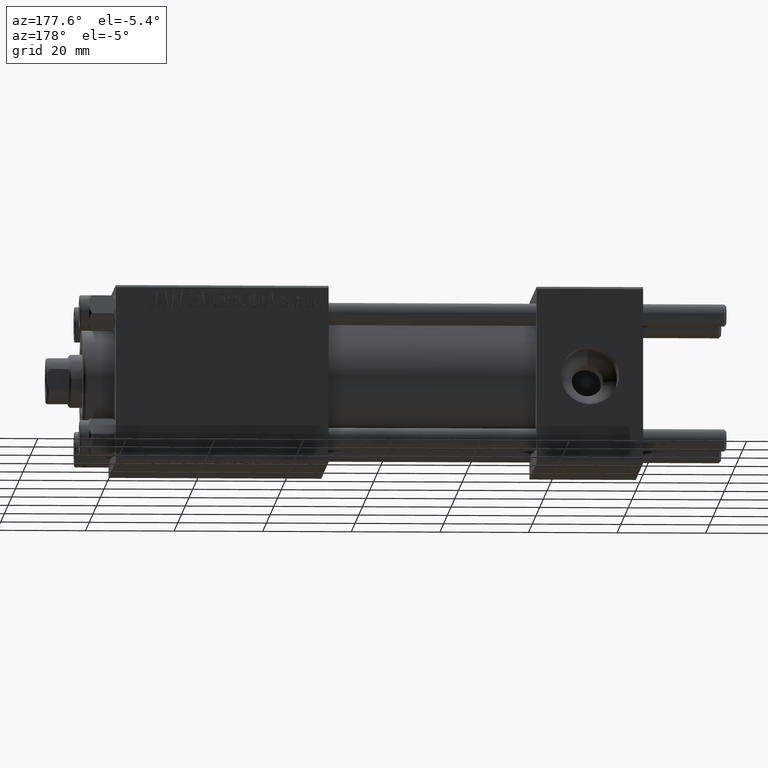
[diagram: clean part render]
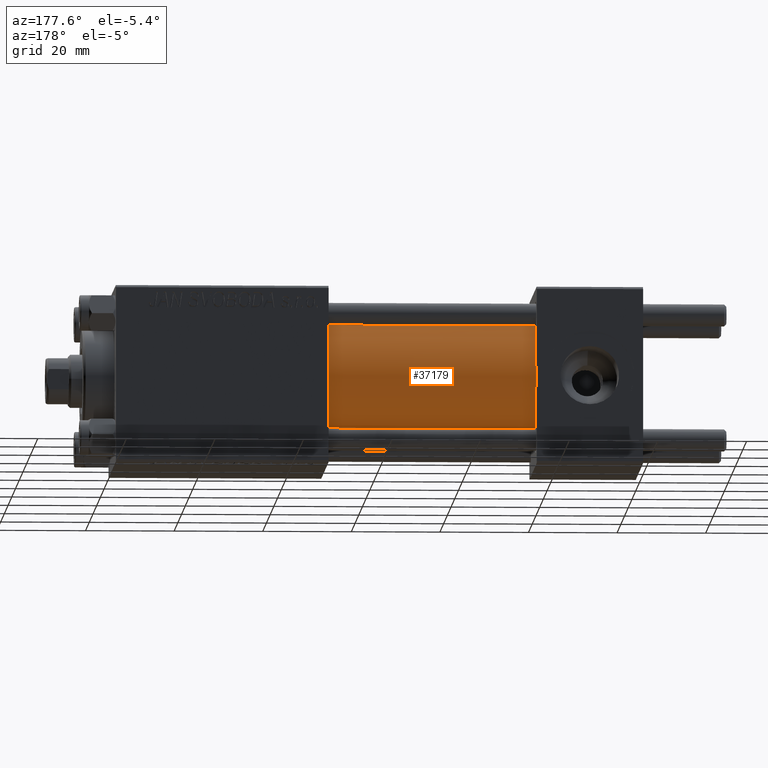
[diagram: same view with one face highlighted and labeled with its STEP entity id]
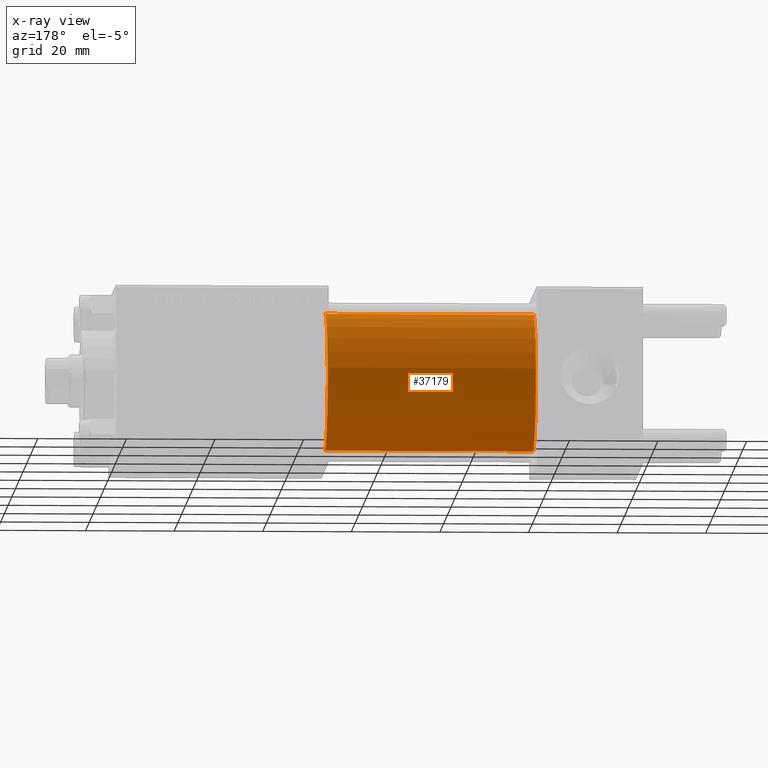
[diagram: x-ray of the same camera — body ghosted, the highlighted face saturated]
A machine part, auxiliary view. The second image highlights one B-rep face of the part: STEP entity #37179.
The next image is the same camera in x-ray: the body ghosted, the highlighted face saturated — about 0% of this face is hidden behind the body in this view.
In plain terms, the highlighted cylindrical surface (partial cylindrical patch) has radius 15.5 mm, axis along (-1, -0, -0).
Its self-contained STEP definition (entity closure, byte-faithful):
#1323 = CARTESIAN_POINT ( 'NONE',  ( 71.00000000000001421, 1.898202538678397557E-15, -15.50000000000000000 ) ) ;
#2757 = VERTEX_POINT ( 'NONE', #26898 ) ;
#4020 = VERTEX_POINT ( 'NONE', #37669 ) ;
#4650 = CARTESIAN_POINT ( 'NONE',  ( 24.00000000000000000, 1.898202538678397557E-15, -15.50000000000000000 ) ) ;
#4896 = DIRECTION ( 'NONE',  ( 1.000000000000000000, 0.000000000000000000, 0.000000000000000000 ) ) ;
#5093 = DIRECTION ( 'NONE',  ( 1.000000000000000000, 0.000000000000000000, 0.000000000000000000 ) ) ;
#5477 = ORIENTED_EDGE ( 'NONE', *, *, #14091, .T. ) ;
#5540 = DIRECTION ( 'NONE',  ( -1.000000000000000000, -0.000000000000000000, -0.000000000000000000 ) ) ;
#6092 = AXIS2_PLACEMENT_3D ( 'NONE', #45076, #4896, #9312 ) ;
#6461 = ORIENTED_EDGE ( 'NONE', *, *, #13568, .F. ) ;
#9312 = DIRECTION ( 'NONE',  ( 0.000000000000000000, 0.000000000000000000, 1.000000000000000000 ) ) ;
#11589 = ORIENTED_EDGE ( 'NONE', *, *, #18932, .T. ) ;
#13568 = EDGE_CURVE ( 'NONE', #23098, #4020, #41745, .T. ) ;
#14091 = EDGE_CURVE ( 'NONE', #23098, #18734, #25110, .T. ) ;
#18734 = VERTEX_POINT ( 'NONE', #4650 ) ;
#18794 = ORIENTED_EDGE ( 'NONE', *, *, #38079, .F. ) ;
#18932 = EDGE_CURVE ( 'NONE', #18734, #2757, #24441, .T. ) ;
#19180 = VECTOR ( 'NONE', #41186, 1000.000000000000000 ) ;
#20764 = DIRECTION ( 'NONE',  ( -1.000000000000000000, -0.000000000000000000, -0.000000000000000000 ) ) ;
#22036 = CARTESIAN_POINT ( 'NONE',  ( 71.00000000000001421, 0.000000000000000000, 0.000000000000000000 ) ) ;
#22497 = AXIS2_PLACEMENT_3D ( 'NONE', #48179, #20764, #36687 ) ;
#23098 = VERTEX_POINT ( 'NONE', #1323 ) ;
#24219 = AXIS2_PLACEMENT_3D ( 'NONE', #22036, #5093, #37968 ) ;
#24441 = CIRCLE ( 'NONE', #6092, 15.50000000000000000 ) ;
#24922 = EDGE_LOOP ( 'NONE', ( #6461, #5477, #11589, #18794 ) ) ;
#25110 = LINE ( 'NONE', #41041, #40060 ) ;
#25437 = CYLINDRICAL_SURFACE ( 'NONE', #22497, 15.50000000000000000 ) ;
#26898 = CARTESIAN_POINT ( 'NONE',  ( 24.00000000000000000, 0.000000000000000000, 15.50000000000000000 ) ) ;
#29450 = LINE ( 'NONE', #49028, #19180 ) ;
#32259 = FACE_OUTER_BOUND ( 'NONE', #24922, .T. ) ;
#36687 = DIRECTION ( 'NONE',  ( 0.000000000000000000, 0.000000000000000000, 1.000000000000000000 ) ) ;
#37179 = ADVANCED_FACE ( 'NONE', ( #32259 ), #25437, .T. ) ;
#37669 = CARTESIAN_POINT ( 'NONE',  ( 71.00000000000001421, 0.000000000000000000, 15.50000000000000000 ) ) ;
#37968 = DIRECTION ( 'NONE',  ( 0.000000000000000000, 0.000000000000000000, -1.000000000000000000 ) ) ;
#38079 = EDGE_CURVE ( 'NONE', #4020, #2757, #29450, .T. ) ;
#40060 = VECTOR ( 'NONE', #5540, 1000.000000000000000 ) ;
#41041 = CARTESIAN_POINT ( 'NONE',  ( 71.00000000000001421, 1.898202538678397557E-15, -15.50000000000000000 ) ) ;
#41186 = DIRECTION ( 'NONE',  ( -1.000000000000000000, -0.000000000000000000, -0.000000000000000000 ) ) ;
#41745 = CIRCLE ( 'NONE', #24219, 15.50000000000000000 ) ;
#45076 = CARTESIAN_POINT ( 'NONE',  ( 24.00000000000000000, 0.000000000000000000, 0.000000000000000000 ) ) ;
#48179 = CARTESIAN_POINT ( 'NONE',  ( 71.00000000000001421, 0.000000000000000000, 0.000000000000000000 ) ) ;
#49028 = CARTESIAN_POINT ( 'NONE',  ( 71.00000000000001421, 0.000000000000000000, 15.50000000000000000 ) ) ;